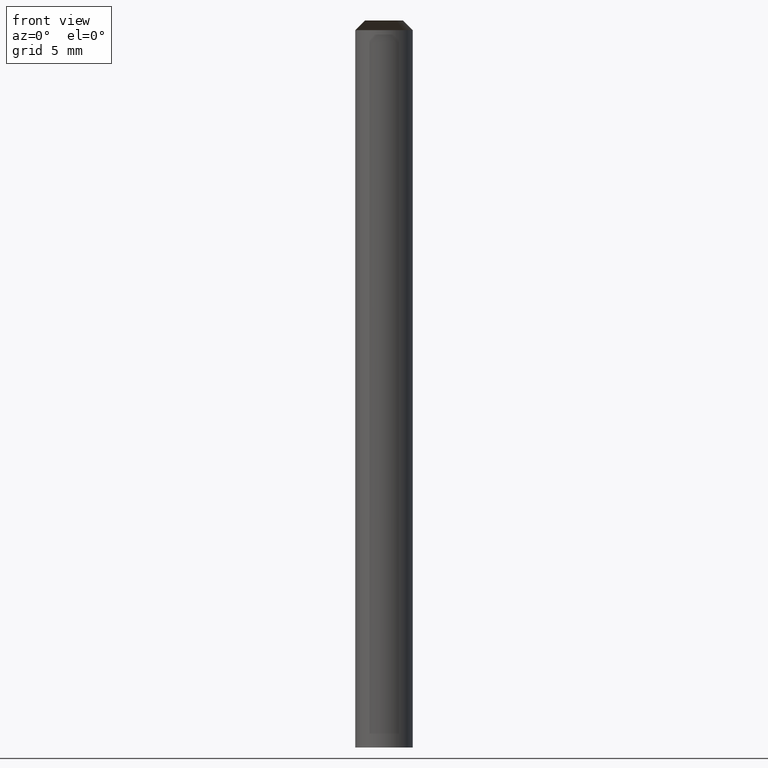
[diagram: clean part render]
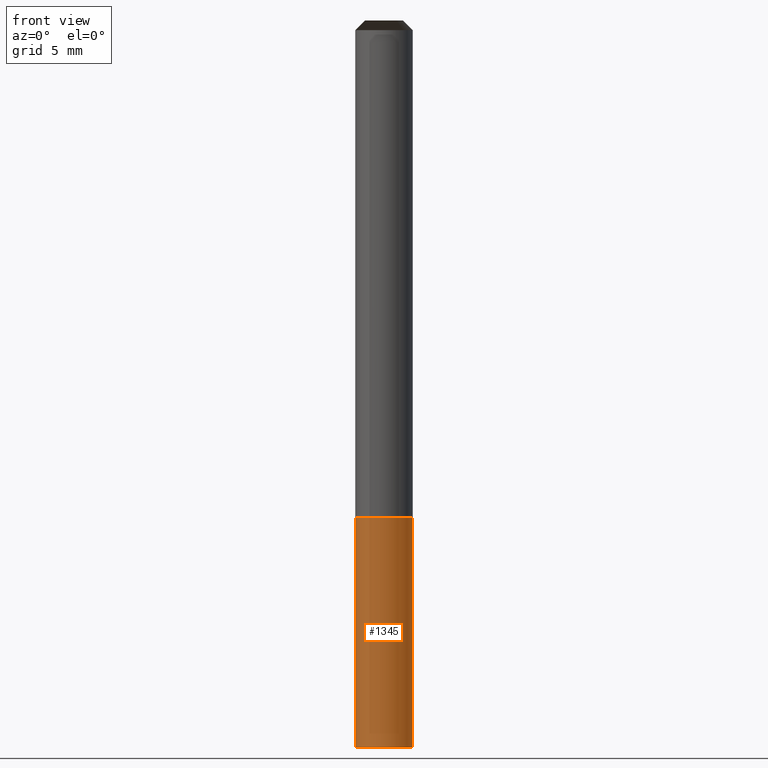
[diagram: same view with one face highlighted and labeled with its STEP entity id]
A machine part, front view. The second image highlights one B-rep face of the part: STEP entity #1345.
In plain terms, the highlighted face is a freeform B-spline surface patch.
Its self-contained STEP definition (entity closure, byte-faithful):
#105=CARTESIAN_POINT('',(0.0,-1.5,-12.0));
#396=CARTESIAN_POINT('',(1.5,0.0,-12.0));
#978=CARTESIAN_POINT('',(-1.5,0.0,-12.0));
#1223=CARTESIAN_POINT('',(1.5,0.0,0.0));
#1227=CARTESIAN_POINT('',(-1.5,0.0,0.0));
#1229=CARTESIAN_POINT('',(-1.5,-1.5,-12.0));
#1230=CARTESIAN_POINT('',(1.5,-1.5,-12.0));
#1231=CARTESIAN_POINT('',(-1.5,-1.5,0.0));
#1232=CARTESIAN_POINT('',(0.0,-1.5,0.0));
#1233=CARTESIAN_POINT('',(1.5,-1.5,0.0));
#1326=(
BOUNDED_SURFACE()
B_SPLINE_SURFACE(1,2,(
(#978,#1229,#105,#1230,#396),
(#1227,#1231,#1232,#1233,#1223)
), .UNSPECIFIED.,.F.,.F.,.F.)
B_SPLINE_SURFACE_WITH_KNOTS((2,2),(3,2,3),(
0.0,1.0),(
0.0,0.5,1.0), .UNSPECIFIED.)
GEOMETRIC_REPRESENTATION_ITEM()
RATIONAL_B_SPLINE_SURFACE(((1.0,0.707106781187,1.0,0.707106781187,1.0),
(1.0,0.707106781187,1.0,0.707106781187,1.0)
))
REPRESENTATION_ITEM('')
SURFACE()
);
#1327=(
BOUNDED_CURVE()
B_SPLINE_CURVE(2,(#396,#1230,#105,#1229,#978),.UNSPECIFIED.,.F.,.F.)
B_SPLINE_CURVE_WITH_KNOTS((3,2,3),
(0.0,0.5,1.0),.UNSPECIFIED.)
CURVE()
GEOMETRIC_REPRESENTATION_ITEM()
RATIONAL_B_SPLINE_CURVE((1.0,0.707106781187,1.0,0.707106781187,1.0))
REPRESENTATION_ITEM('')
);
#1328=(
BOUNDED_CURVE()
B_SPLINE_CURVE(1,(#978,#1227),.UNSPECIFIED.,.F.,.F.)
B_SPLINE_CURVE_WITH_KNOTS((2,2),
(0.0,1.0),.UNSPECIFIED.)
CURVE()
GEOMETRIC_REPRESENTATION_ITEM()
RATIONAL_B_SPLINE_CURVE((1.0,1.0))
REPRESENTATION_ITEM('')
);
#1329=(
BOUNDED_CURVE()
B_SPLINE_CURVE(2,(#1227,#1231,#1232,#1233,#1223),.UNSPECIFIED.,.F.,.F.)
B_SPLINE_CURVE_WITH_KNOTS((3,2,3),
(0.0,0.5,1.0),.UNSPECIFIED.)
CURVE()
GEOMETRIC_REPRESENTATION_ITEM()
RATIONAL_B_SPLINE_CURVE((1.0,0.707106781187,1.0,0.707106781187,1.0))
REPRESENTATION_ITEM('')
);
#1330=(
BOUNDED_CURVE()
B_SPLINE_CURVE(1,(#1223,#396),.UNSPECIFIED.,.F.,.F.)
B_SPLINE_CURVE_WITH_KNOTS((2,2),
(0.0,1.0),.UNSPECIFIED.)
CURVE()
GEOMETRIC_REPRESENTATION_ITEM()
RATIONAL_B_SPLINE_CURVE((1.0,1.0))
REPRESENTATION_ITEM('')
);
#1331=VERTEX_POINT('',#396);
#1332=VERTEX_POINT('',#978);
#1333=VERTEX_POINT('',#1223);
#1334=VERTEX_POINT('',#1227);
#1335=EDGE_CURVE('',#1331,#1332,#1327,.T.);
#1336=EDGE_CURVE('',#1332,#1334,#1328,.T.);
#1337=EDGE_CURVE('',#1334,#1333,#1329,.T.);
#1338=EDGE_CURVE('',#1333,#1331,#1330,.T.);
#1339=ORIENTED_EDGE('',*,*,#1335,.T.);
#1340=ORIENTED_EDGE('',*,*,#1336,.T.);
#1341=ORIENTED_EDGE('',*,*,#1337,.T.);
#1342=ORIENTED_EDGE('',*,*,#1338,.T.);
#1343=EDGE_LOOP('',(#1339,#1340,#1341,#1342));
#1344=FACE_OUTER_BOUND('',#1343,.T.);
#1345=ADVANCED_FACE('',(#1344),#1326,.T.);